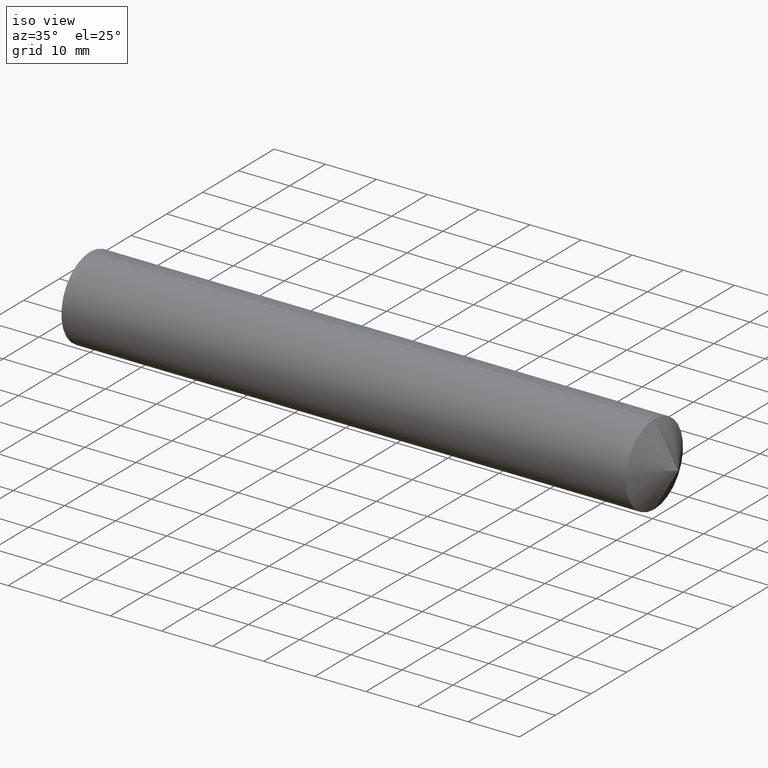
[diagram: clean part render]
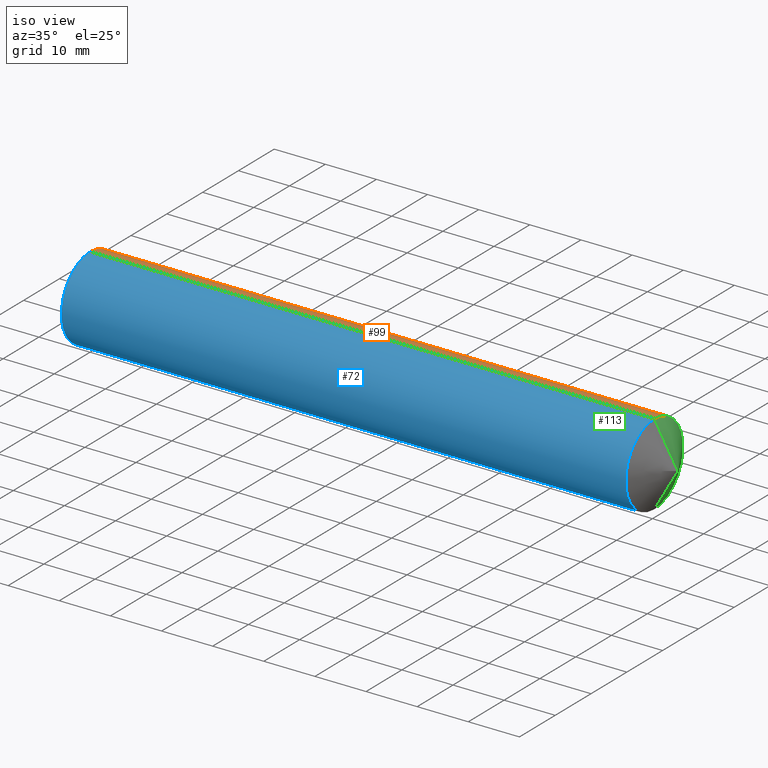
[diagram: same view with three faces highlighted in distinct colors, each labeled with its STEP entity id]
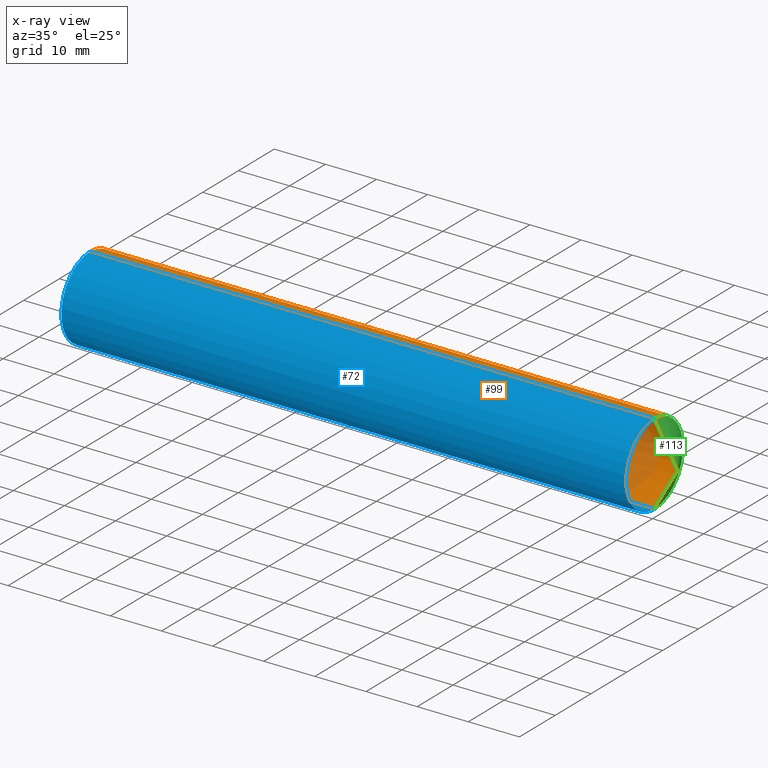
[diagram: x-ray of the same camera — body ghosted, the three highlighted faces saturated]
A machine part, iso view with three faces highlighted in distinct colors.
The next image is the same camera in x-ray (body ghosted, the three faces saturated) — at least one of them is partly hidden behind the body in this view.
Their STEP definitions:

[orange] entity #99 — the highlighted cylindrical surface (partial cylindrical patch) has radius 8 mm, axis along (-1, -0, -0).
#2 = EDGE_CURVE ( 'NONE', #34, #6, #116, .T. ) ;
#4 = EDGE_CURVE ( 'NONE', #6, #164, #147, .T. ) ;
#5 = DIRECTION ( 'NONE',  ( 0.0000000000000000000, 0.0000000000000000000, 1.000000000000000000 ) ) ;
#6 = VERTEX_POINT ( 'NONE', #121 ) ;
#9 = AXIS2_PLACEMENT_3D ( 'NONE', #87, #90, #63 ) ;
#16 = AXIS2_PLACEMENT_3D ( 'NONE', #80, #92, #5 ) ;
#17 = DIRECTION ( 'NONE',  ( -1.000000000000000000, -0.0000000000000000000, -0.0000000000000000000 ) ) ;
#25 = ORIENTED_EDGE ( 'NONE', *, *, #59, .T. ) ;
#26 = CARTESIAN_POINT ( 'NONE',  ( -10.60077346251142700, 9.797174393178825700E-016, -8.000000000000000000 ) ) ;
#34 = VERTEX_POINT ( 'NONE', #142 ) ;
#36 = ORIENTED_EDGE ( 'NONE', *, *, #4, .F. ) ;
#37 = CARTESIAN_POINT ( 'NONE',  ( 110.3811978464830200, 9.797174393178825700E-016, -8.000000000000000000 ) ) ;
#41 = DIRECTION ( 'NONE',  ( 0.0000000000000000000, 0.0000000000000000000, 1.000000000000000000 ) ) ;
#45 = AXIS2_PLACEMENT_3D ( 'NONE', #111, #17, #41 ) ;
#57 = VERTEX_POINT ( 'NONE', #37 ) ;
#58 = ORIENTED_EDGE ( 'NONE', *, *, #2, .F. ) ;
#59 = EDGE_CURVE ( 'NONE', #57, #164, #129, .T. ) ;
#62 = VECTOR ( 'NONE', #64, 1000.000000000000000 ) ;
#63 = DIRECTION ( 'NONE',  ( 0.0000000000000000000, 0.0000000000000000000, 1.000000000000000000 ) ) ;
#64 = DIRECTION ( 'NONE',  ( -1.000000000000000000, -0.0000000000000000000, -0.0000000000000000000 ) ) ;
#67 = CYLINDRICAL_SURFACE ( 'NONE', #45, 8.000000000000000000 ) ;
#80 = CARTESIAN_POINT ( 'NONE',  ( 110.3811978464830200, 0.0000000000000000000, 0.0000000000000000000 ) ) ;
#87 = CARTESIAN_POINT ( 'NONE',  ( 0.0000000000000000000, 0.0000000000000000000, 0.0000000000000000000 ) ) ;
#90 = DIRECTION ( 'NONE',  ( -1.000000000000000000, -0.0000000000000000000, -0.0000000000000000000 ) ) ;
#92 = DIRECTION ( 'NONE',  ( -1.000000000000000000, -0.0000000000000000000, -0.0000000000000000000 ) ) ;
#94 = CIRCLE ( 'NONE', #16, 8.000000000000000000 ) ;
#95 = EDGE_LOOP ( 'NONE', ( #127, #25, #36, #58 ) ) ;
#99 = ADVANCED_FACE ( 'NONE', ( #100 ), #67, .T. ) ;
#100 = FACE_OUTER_BOUND ( 'NONE', #95, .T. ) ;
#111 = CARTESIAN_POINT ( 'NONE',  ( -10.60077346251142700, 0.0000000000000000000, 0.0000000000000000000 ) ) ;
#116 = LINE ( 'NONE', #154, #62 ) ;
#118 = DIRECTION ( 'NONE',  ( -1.000000000000000000, -0.0000000000000000000, -0.0000000000000000000 ) ) ;
#121 = CARTESIAN_POINT ( 'NONE',  ( 0.0000000000000000000, 0.0000000000000000000, 8.000000000000000000 ) ) ;
#125 = CARTESIAN_POINT ( 'NONE',  ( 0.0000000000000000000, 9.797174393178825700E-016, -8.000000000000000000 ) ) ;
#127 = ORIENTED_EDGE ( 'NONE', *, *, #139, .T. ) ;
#129 = LINE ( 'NONE', #26, #155 ) ;
#139 = EDGE_CURVE ( 'NONE', #34, #57, #94, .T. ) ;
#142 = CARTESIAN_POINT ( 'NONE',  ( 110.3811978464830200, 0.0000000000000000000, 8.000000000000000000 ) ) ;
#147 = CIRCLE ( 'NONE', #9, 8.000000000000000000 ) ;
#154 = CARTESIAN_POINT ( 'NONE',  ( -10.60077346251142700, 0.0000000000000000000, 8.000000000000000000 ) ) ;
#155 = VECTOR ( 'NONE', #118, 1000.000000000000000 ) ;
#164 = VERTEX_POINT ( 'NONE', #125 ) ;

[blue] entity #72 — the highlighted cylindrical surface (partial cylindrical patch) has radius 8 mm, axis along (-1, -0, -0).
#2 = EDGE_CURVE ( 'NONE', #34, #6, #116, .T. ) ;
#6 = VERTEX_POINT ( 'NONE', #121 ) ;
#14 = DIRECTION ( 'NONE',  ( 0.0000000000000000000, 0.0000000000000000000, 1.000000000000000000 ) ) ;
#23 = CIRCLE ( 'NONE', #158, 8.000000000000000000 ) ;
#24 = EDGE_CURVE ( 'NONE', #164, #6, #23, .T. ) ;
#26 = CARTESIAN_POINT ( 'NONE',  ( -10.60077346251142700, 9.797174393178825700E-016, -8.000000000000000000 ) ) ;
#27 = CARTESIAN_POINT ( 'NONE',  ( 0.0000000000000000000, 0.0000000000000000000, 0.0000000000000000000 ) ) ;
#28 = ORIENTED_EDGE ( 'NONE', *, *, #29, .T. ) ;
#29 = EDGE_CURVE ( 'NONE', #57, #34, #138, .T. ) ;
#34 = VERTEX_POINT ( 'NONE', #142 ) ;
#37 = CARTESIAN_POINT ( 'NONE',  ( 110.3811978464830200, 9.797174393178825700E-016, -8.000000000000000000 ) ) ;
#42 = CARTESIAN_POINT ( 'NONE',  ( -10.60077346251142700, 0.0000000000000000000, 0.0000000000000000000 ) ) ;
#46 = ORIENTED_EDGE ( 'NONE', *, *, #24, .F. ) ;
#56 = EDGE_LOOP ( 'NONE', ( #103, #28, #98, #46 ) ) ;
#57 = VERTEX_POINT ( 'NONE', #37 ) ;
#59 = EDGE_CURVE ( 'NONE', #57, #164, #129, .T. ) ;
#61 = DIRECTION ( 'NONE',  ( -1.000000000000000000, -0.0000000000000000000, -0.0000000000000000000 ) ) ;
#62 = VECTOR ( 'NONE', #64, 1000.000000000000000 ) ;
#64 = DIRECTION ( 'NONE',  ( -1.000000000000000000, -0.0000000000000000000, -0.0000000000000000000 ) ) ;
#72 = ADVANCED_FACE ( 'NONE', ( #85 ), #83, .T. ) ;
#76 = AXIS2_PLACEMENT_3D ( 'NONE', #141, #61, #77 ) ;
#77 = DIRECTION ( 'NONE',  ( 0.0000000000000000000, 0.0000000000000000000, 1.000000000000000000 ) ) ;
#83 = CYLINDRICAL_SURFACE ( 'NONE', #101, 8.000000000000000000 ) ;
#85 = FACE_OUTER_BOUND ( 'NONE', #56, .T. ) ;
#98 = ORIENTED_EDGE ( 'NONE', *, *, #2, .T. ) ;
#101 = AXIS2_PLACEMENT_3D ( 'NONE', #42, #123, #122 ) ;
#103 = ORIENTED_EDGE ( 'NONE', *, *, #59, .F. ) ;
#116 = LINE ( 'NONE', #154, #62 ) ;
#117 = DIRECTION ( 'NONE',  ( -1.000000000000000000, -0.0000000000000000000, -0.0000000000000000000 ) ) ;
#118 = DIRECTION ( 'NONE',  ( -1.000000000000000000, -0.0000000000000000000, -0.0000000000000000000 ) ) ;
#121 = CARTESIAN_POINT ( 'NONE',  ( 0.0000000000000000000, 0.0000000000000000000, 8.000000000000000000 ) ) ;
#122 = DIRECTION ( 'NONE',  ( 0.0000000000000000000, 0.0000000000000000000, 1.000000000000000000 ) ) ;
#123 = DIRECTION ( 'NONE',  ( -1.000000000000000000, -0.0000000000000000000, -0.0000000000000000000 ) ) ;
#125 = CARTESIAN_POINT ( 'NONE',  ( 0.0000000000000000000, 9.797174393178825700E-016, -8.000000000000000000 ) ) ;
#129 = LINE ( 'NONE', #26, #155 ) ;
#138 = CIRCLE ( 'NONE', #76, 8.000000000000000000 ) ;
#141 = CARTESIAN_POINT ( 'NONE',  ( 110.3811978464830200, 0.0000000000000000000, 0.0000000000000000000 ) ) ;
#142 = CARTESIAN_POINT ( 'NONE',  ( 110.3811978464830200, 0.0000000000000000000, 8.000000000000000000 ) ) ;
#154 = CARTESIAN_POINT ( 'NONE',  ( -10.60077346251142700, 0.0000000000000000000, 8.000000000000000000 ) ) ;
#155 = VECTOR ( 'NONE', #118, 1000.000000000000000 ) ;
#158 = AXIS2_PLACEMENT_3D ( 'NONE', #27, #117, #14 ) ;
#164 = VERTEX_POINT ( 'NONE', #125 ) ;

[green] entity #113 — the highlighted conical surface has half-angle 60 deg.
#5 = DIRECTION ( 'NONE',  ( 0.0000000000000000000, 0.0000000000000000000, 1.000000000000000000 ) ) ;
#10 = VECTOR ( 'NONE', #40, 1000.000000000000000 ) ;
#11 = EDGE_CURVE ( 'NONE', #48, #57, #79, .T. ) ;
#12 = CARTESIAN_POINT ( 'NONE',  ( 115.0000000000000100, -6.938893903907228400E-015, 0.0000000000000000000 ) ) ;
#13 = EDGE_CURVE ( 'NONE', #48, #34, #163, .T. ) ;
#16 = AXIS2_PLACEMENT_3D ( 'NONE', #80, #92, #5 ) ;
#19 = EDGE_LOOP ( 'NONE', ( #157, #150, #140 ) ) ;
#22 = VECTOR ( 'NONE', #143, 1000.000000000000000 ) ;
#31 = DIRECTION ( 'NONE',  ( -1.000000000000000000, -0.0000000000000000000, -0.0000000000000000000 ) ) ;
#33 = FACE_OUTER_BOUND ( 'NONE', #19, .T. ) ;
#34 = VERTEX_POINT ( 'NONE', #142 ) ;
#37 = CARTESIAN_POINT ( 'NONE',  ( 110.3811978464830200, 9.797174393178825700E-016, -8.000000000000000000 ) ) ;
#40 = DIRECTION ( 'NONE',  ( -0.4999999999999995000, 0.0000000000000000000, 0.8660254037844389300 ) ) ;
#48 = VERTEX_POINT ( 'NONE', #12 ) ;
#49 = CARTESIAN_POINT ( 'NONE',  ( 110.3811978464830200, 9.797174393178825700E-016, -8.000000000000000000 ) ) ;
#55 = CARTESIAN_POINT ( 'NONE',  ( 110.3811978464830200, 0.0000000000000000000, 0.0000000000000000000 ) ) ;
#57 = VERTEX_POINT ( 'NONE', #37 ) ;
#70 = CONICAL_SURFACE ( 'NONE', #96, 8.000000000000000000, 1.047197551196598300 ) ;
#79 = LINE ( 'NONE', #49, #22 ) ;
#80 = CARTESIAN_POINT ( 'NONE',  ( 110.3811978464830200, 0.0000000000000000000, 0.0000000000000000000 ) ) ;
#88 = CARTESIAN_POINT ( 'NONE',  ( 110.3811978464830200, 0.0000000000000000000, 8.000000000000000000 ) ) ;
#92 = DIRECTION ( 'NONE',  ( -1.000000000000000000, -0.0000000000000000000, -0.0000000000000000000 ) ) ;
#93 = DIRECTION ( 'NONE',  ( 0.0000000000000000000, 0.0000000000000000000, 1.000000000000000000 ) ) ;
#94 = CIRCLE ( 'NONE', #16, 8.000000000000000000 ) ;
#96 = AXIS2_PLACEMENT_3D ( 'NONE', #55, #31, #93 ) ;
#113 = ADVANCED_FACE ( 'NONE', ( #33 ), #70, .T. ) ;
#139 = EDGE_CURVE ( 'NONE', #34, #57, #94, .T. ) ;
#140 = ORIENTED_EDGE ( 'NONE', *, *, #139, .F. ) ;
#142 = CARTESIAN_POINT ( 'NONE',  ( 110.3811978464830200, 0.0000000000000000000, 8.000000000000000000 ) ) ;
#143 = DIRECTION ( 'NONE',  ( -0.4999999999999995000, 1.060575238724907300E-016, -0.8660254037844389300 ) ) ;
#150 = ORIENTED_EDGE ( 'NONE', *, *, #11, .T. ) ;
#157 = ORIENTED_EDGE ( 'NONE', *, *, #13, .F. ) ;
#163 = LINE ( 'NONE', #88, #10 ) ;